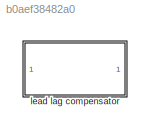
MODEL slx_b0aef38482a0
KIND model
CONFIG AbsTol = auto
CONFIG FixedStep = auto
CONFIG MaxStep = auto
CONFIG MinStep = auto
CONFIG RelTol = 1e-3
CONFIG SampleTimeConstraint = Unconstrained
CONFIG Solver = VariableStepAuto
CONFIG SolverMode = Auto
CONFIG SolverName = VariableStepAuto
CONFIG StartTime = 0.0
CONFIG StopTime = 10.0
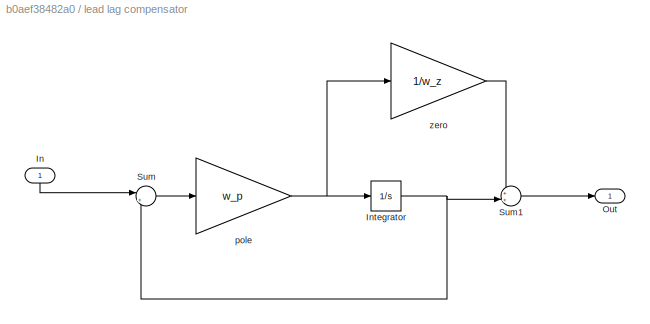
BLOCK [SubSystem] lead lag compensator
  Ports = [1, 1]
  RequestExecContextInheritance = off
  Variant = off
BLOCK [Inport] lead lag compensator/In
  IconDisplay = Port number
BLOCK [Integrator] lead lag compensator/Integrator
  Ports = [1, 1]
BLOCK [Outport] lead lag compensator/Out
  IconDisplay = Port number
BLOCK [Sum] lead lag compensator/Sum
  IconShape = round
  InputSameDT = off
  Inputs = |+-
  OutDataTypeStr = Inherit: Inherit via internal rule
  Ports = [2, 1]
  SaturateOnIntegerOverflow = off
BLOCK [Sum] lead lag compensator/Sum1
  IconShape = round
  InputSameDT = off
  Inputs = ++|
  OutDataTypeStr = Inherit: Inherit via internal rule
  Ports = [2, 1]
  SaturateOnIntegerOverflow = off
BLOCK [Gain] lead lag compensator/pole
  Gain = w_p
  OutDataTypeStr = Inherit: Inherit via internal rule
  ParamDataTypeStr = Inherit: Inherit via internal rule
  SaturateOnIntegerOverflow = off
BLOCK [Gain] lead lag compensator/zero
  Gain = 1/w_z
  OutDataTypeStr = Inherit: Inherit via internal rule
  ParamDataTypeStr = Inherit: Inherit via internal rule
  SaturateOnIntegerOverflow = off
LINE lead lag compensator/In:1 -> lead lag compensator/Sum:1
NET lead lag compensator/Integrator:1 -> lead lag compensator/Sum1:2, lead lag compensator/Sum:2
LINE lead lag compensator/Sum1:1 -> lead lag compensator/Out:1
LINE lead lag compensator/Sum:1 -> lead lag compensator/pole:1
NET lead lag compensator/pole:1 -> lead lag compensator/Integrator:1, lead lag compensator/zero:1
LINE lead lag compensator/zero:1 -> lead lag compensator/Sum1:1
note: NET lines group one-source signal fan-out (src -> all destinations, sorted); 1:1 wires keep LINE
